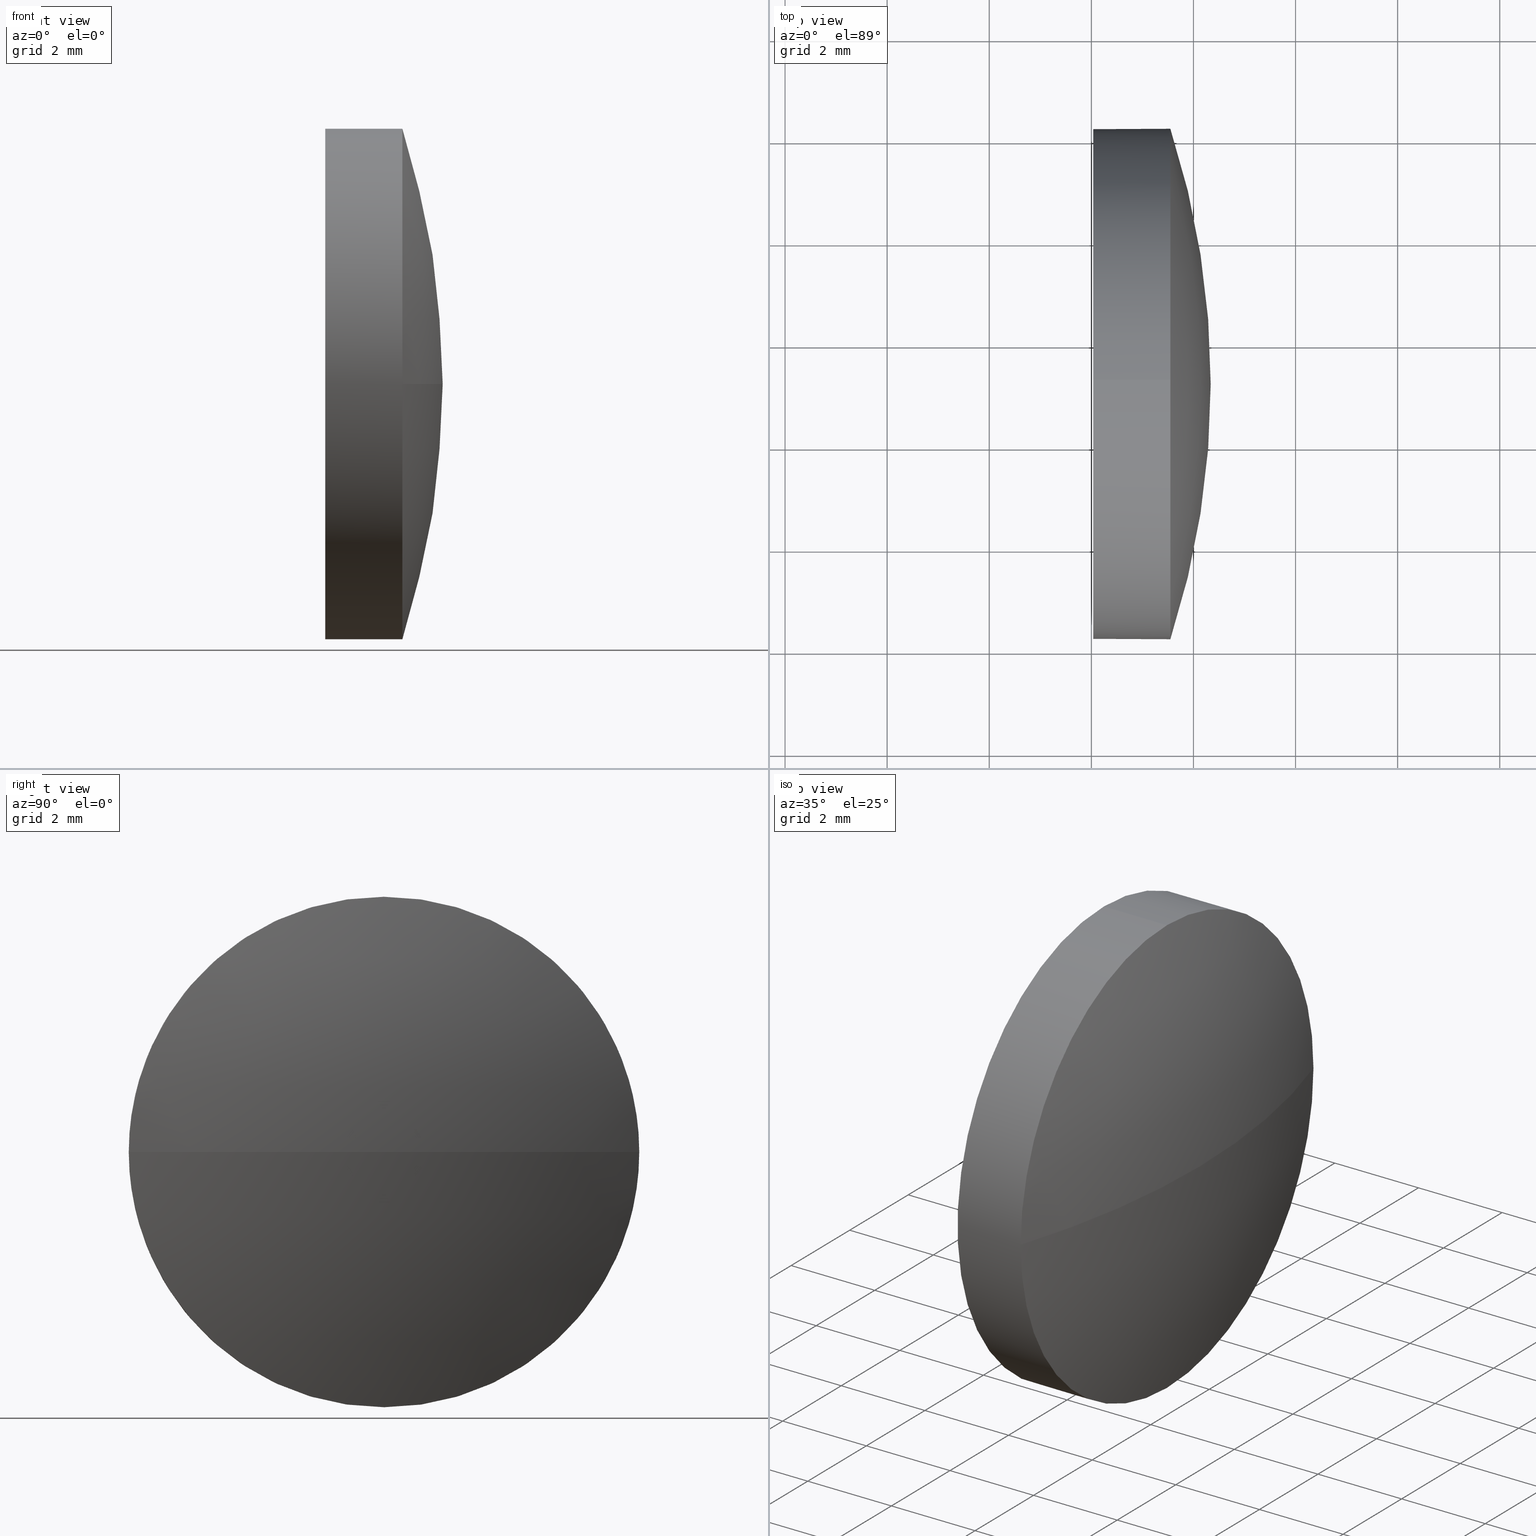
[diagram: canonical four-view strip — front | top / right | iso, engineering-drawing reading convention]
A machine part, canonical four-view strip (front | top / right | iso — engineering-drawing reading convention). The complete STEP part file that produces these views, byte-faithful:
ISO-10303-21;
HEADER;
FILE_DESCRIPTION (( 'STEP AP214' ),
    '1' );
FILE_NAME ('100190.STEP',
    '2019-05-21T06:18:10',
    ( '' ),
    ( '' ),
    'SwSTEP 2.0',
    'SolidWorks 2016',
    '' );
FILE_SCHEMA (( 'AUTOMOTIVE_DESIGN' ));
ENDSEC;

DATA;
#1 = AXIS2_PLACEMENT_3D ( 'NONE', #127, #180, #59 ) ;
#2 = LINE ( 'NONE', #169, #105 ) ;
#3 = CARTESIAN_POINT ( 'NONE',  ( 673.5480780452614900, 143.2040928477547100, 0.0000000000000000000 ) ) ;
#4 =( GEOMETRIC_REPRESENTATION_CONTEXT ( 3 ) GLOBAL_UNCERTAINTY_ASSIGNED_CONTEXT ( ( #103 ) ) GLOBAL_UNIT_ASSIGNED_CONTEXT ( ( #133, #171, #73 ) ) REPRESENTATION_CONTEXT ( 'NONE', 'WORKASPACE' ) );
#5 = EDGE_CURVE ( 'NONE', #115, #97, #75, .T. ) ;
#6 = VERTEX_POINT ( 'NONE', #43 ) ;
#7 =( LENGTH_UNIT ( ) NAMED_UNIT ( * ) SI_UNIT ( .MILLI., .METRE. ) );
#8 =( NAMED_UNIT ( * ) PLANE_ANGLE_UNIT ( ) SI_UNIT ( $, .RADIAN. ) );
#9 = CARTESIAN_POINT ( 'NONE',  ( 673.5480780452614900, 138.2040928477546800, -6.123233995736711100E-016 ) ) ;
#10 = AXIS2_PLACEMENT_3D ( 'NONE', #49, #144, #56 ) ;
#11 = EDGE_LOOP ( 'NONE', ( #177, #136, #35, #143 ) ) ;
#12 = UNCERTAINTY_MEASURE_WITH_UNIT (LENGTH_MEASURE( 1.000000000000000100E-005 ), #7, 'distance_accuracy_value', 'NONE');
#13 = STYLED_ITEM ( 'NONE', ( #156 ), #165 ) ;
#14 = ORIENTED_EDGE ( 'NONE', *, *, #145, .F. ) ;
#15 = FACE_OUTER_BOUND ( 'NONE', #71, .T. ) ;
#16 = CARTESIAN_POINT ( 'NONE',  ( 671.2404057911960500, 143.2040928477547100, 0.0000000000000000000 ) ) ;
#17 = PRESENTATION_LAYER_ASSIGNMENT (  '', '', ( #13 ) ) ;
#18 = CARTESIAN_POINT ( 'NONE',  ( 658.1202932351349100, 143.2040928477546200, 0.0000000000000000000 ) ) ;
#19 = CARTESIAN_POINT ( 'NONE',  ( 672.0380780452615000, 143.2040928477547100, 0.0000000000000000000 ) ) ;
#20 = DIRECTION ( 'NONE',  ( -0.0000000000000000000, 0.0000000000000000000, 1.000000000000000000 ) ) ;
#21 = ORIENTED_EDGE ( 'NONE', *, *, #119, .T. ) ;
#22 = CARTESIAN_POINT ( 'NONE',  ( 658.1202932351349100, 143.2040928477546200, 0.0000000000000000000 ) ) ;
#23 = FILL_AREA_STYLE_COLOUR ( '', #139 ) ;
#24 = ORIENTED_EDGE ( 'NONE', *, *, #54, .F. ) ;
#25 = MECHANICAL_DESIGN_GEOMETRIC_PRESENTATION_REPRESENTATION (  '', ( #13 ), #4 ) ;
#26 = ADVANCED_FACE ( 'NONE', ( #155 ), #28, .F. ) ;
#27 = ADVANCED_FACE ( 'NONE', ( #150 ), #68, .T. ) ;
#28 = PLANE ( 'NONE',  #110 ) ;
#29 = CARTESIAN_POINT ( 'NONE',  ( 672.0380780452615000, 143.2040928477547100, -5.000000000000004400 ) ) ;
#30 = CARTESIAN_POINT ( 'NONE',  ( 672.0380780452615000, 143.2040928477547100, 0.0000000000000000000 ) ) ;
#31 = CARTESIAN_POINT ( 'NONE',  ( 673.5480780452614900, 143.2040928477547100, 5.000000000000004400 ) ) ;
#32 = SURFACE_STYLE_FILL_AREA ( #154 ) ;
#33 = DIRECTION ( 'NONE',  ( 0.0000000000000000000, 0.0000000000000000000, 1.000000000000000000 ) ) ;
#34 = ORIENTED_EDGE ( 'NONE', *, *, #84, .F. ) ;
#35 = ORIENTED_EDGE ( 'NONE', *, *, #77, .F. ) ;
#36 = UNCERTAINTY_MEASURE_WITH_UNIT (LENGTH_MEASURE( 1.000000000000000100E-005 ), #48, 'distance_accuracy_value', 'NONE');
#37 = EDGE_CURVE ( 'NONE', #97, #168, #38, .T. ) ;
#38 = CIRCLE ( 'NONE', #123, 5.000000000000004400 ) ;
#39 = ADVANCED_FACE ( 'NONE', ( #53 ), #78, .T. ) ;
#40 = DIRECTION ( 'NONE',  ( -1.000000000000000000, -0.0000000000000000000, -0.0000000000000000000 ) ) ;
#41 = CYLINDRICAL_SURFACE ( 'NONE', #176, 5.000000000000004400 ) ;
#42 = CARTESIAN_POINT ( 'NONE',  ( 673.5480780452614900, 148.2040928477546500, 0.0000000000000000000 ) ) ;
#43 = CARTESIAN_POINT ( 'NONE',  ( 673.5480780452614900, 143.2040928477547100, -5.000000000000004400 ) ) ;
#44 = MANIFOLD_SOLID_BREP ( '��ת2', #104 ) ;
#45 = ORIENTED_EDGE ( 'NONE', *, *, #77, .T. ) ;
#46 = DIRECTION ( 'NONE',  ( 0.0000000000000000000, 0.0000000000000000000, 1.000000000000000000 ) ) ;
#47 = PRODUCT ( '100190', '100190', '', ( #132 ) ) ;
#48 =( LENGTH_UNIT ( ) NAMED_UNIT ( * ) SI_UNIT ( .MILLI., .METRE. ) );
#49 = CARTESIAN_POINT ( 'NONE',  ( 658.1202932351349100, 143.2040928477546200, 0.0000000000000000000 ) ) ;
#50 = ORIENTED_EDGE ( 'NONE', *, *, #108, .F. ) ;
#51 = DIRECTION ( 'NONE',  ( -1.000000000000000000, -0.0000000000000000000, -0.0000000000000000000 ) ) ;
#52 = ORIENTED_EDGE ( 'NONE', *, *, #37, .T. ) ;
#53 = FACE_OUTER_BOUND ( 'NONE', #134, .T. ) ;
#54 = EDGE_CURVE ( 'NONE', #168, #184, #2, .T. ) ;
#55 = DIRECTION ( 'NONE',  ( -0.0000000000000000000, 0.0000000000000000000, -1.000000000000000000 ) ) ;
#56 = DIRECTION ( 'NONE',  ( 0.0000000000000000000, 1.000000000000000000, 0.0000000000000000000 ) ) ;
#57 = SURFACE_SIDE_STYLE ('',( #92 ) ) ;
#58 = SHAPE_DEFINITION_REPRESENTATION ( #113, #165 ) ;
#59 = DIRECTION ( 'NONE',  ( 0.0000000000000000000, 0.0000000000000000000, 1.000000000000000000 ) ) ;
#60 = CARTESIAN_POINT ( 'NONE',  ( 671.2404057911960500, 143.2040928477547100, -5.000000000000004400 ) ) ;
#61 = DIRECTION ( 'NONE',  ( 1.000000000000000000, 0.0000000000000000000, 0.0000000000000000000 ) ) ;
#62 = CIRCLE ( 'NONE', #158, 5.000000000000004400 ) ;
#63 = COLOUR_RGB ( '',1.000000000000000000, 1.000000000000000000, 1.000000000000000000 ) ;
#64 = DIRECTION ( 'NONE',  ( 0.0000000000000000000, 0.0000000000000000000, 1.000000000000000000 ) ) ;
#65 = ORIENTED_EDGE ( 'NONE', *, *, #37, .F. ) ;
#66 = FILL_AREA_STYLE ('',( #166 ) ) ;
#67 = SURFACE_STYLE_USAGE ( .BOTH. , #57 ) ;
#68 = SPHERICAL_SURFACE ( 'NONE', #135, 16.21778481012662400 ) ;
#69 = AXIS2_PLACEMENT_3D ( 'NONE', #181, #33, #61 ) ;
#70 = DIRECTION ( 'NONE',  ( 1.000000000000000000, 0.0000000000000000000, 0.0000000000000000000 ) ) ;
#71 = EDGE_LOOP ( 'NONE', ( #159, #161, #14, #24, #99 ) ) ;
#72 = CARTESIAN_POINT ( 'NONE',  ( 674.3380780452614500, 143.2040928477546200, 0.0000000000000000000 ) ) ;
#73 =( NAMED_UNIT ( * ) SI_UNIT ( $, .STERADIAN. ) SOLID_ANGLE_UNIT ( ) );
#74 = APPLICATION_CONTEXT ( 'automotive_design' ) ;
#75 = CIRCLE ( 'NONE', #80, 16.21778481012661600 ) ;
#76 = APPLICATION_PROTOCOL_DEFINITION ( 'draft international standard', 'automotive_design', 1998, #74 ) ;
#77 = EDGE_CURVE ( 'NONE', #6, #97, #185, .T. ) ;
#78 = CYLINDRICAL_SURFACE ( 'NONE', #148, 5.000000000000004400 ) ;
#79 = LINE ( 'NONE', #60, #107 ) ;
#80 = AXIS2_PLACEMENT_3D ( 'NONE', #179, #95, #114 ) ;
#81 = DIRECTION ( 'NONE',  ( 1.000000000000000000, 0.0000000000000000000, 0.0000000000000000000 ) ) ;
#82 = DIRECTION ( 'NONE',  ( -1.000000000000000000, -0.0000000000000000000, -0.0000000000000000000 ) ) ;
#83 = DIRECTION ( 'NONE',  ( 0.0000000000000000000, 0.0000000000000000000, 1.000000000000000000 ) ) ;
#84 = EDGE_CURVE ( 'NONE', #168, #86, #122, .T. ) ;
#85 =( NAMED_UNIT ( * ) SI_UNIT ( $, .STERADIAN. ) SOLID_ANGLE_UNIT ( ) );
#86 = VERTEX_POINT ( 'NONE', #42 ) ;
#87 = DIRECTION ( 'NONE',  ( -1.000000000000000000, -0.0000000000000000000, -0.0000000000000000000 ) ) ;
#88 = DIRECTION ( 'NONE',  ( -1.000000000000000000, -0.0000000000000000000, -0.0000000000000000000 ) ) ;
#89 = APPLICATION_PROTOCOL_DEFINITION ( 'draft international standard', 'automotive_design', 1998, #173 ) ;
#90 = ORIENTED_EDGE ( 'NONE', *, *, #54, .T. ) ;
#91 = CIRCLE ( 'NONE', #131, 5.000000000000004400 ) ;
#92 = SURFACE_STYLE_FILL_AREA ( #66 ) ;
#93 = EDGE_CURVE ( 'NONE', #6, #117, #79, .T. ) ;
#94 = CIRCLE ( 'NONE', #141, 16.21778481012658800 ) ;
#95 = DIRECTION ( 'NONE',  ( 0.0000000000000000000, 1.224646799147353200E-016, -1.000000000000000000 ) ) ;
#96 = CARTESIAN_POINT ( 'NONE',  ( 672.0380780452615000, 143.2040928477547100, 0.0000000000000000000 ) ) ;
#97 = VERTEX_POINT ( 'NONE', #9 ) ;
#98 = EDGE_CURVE ( 'NONE', #86, #6, #91, .T. ) ;
#99 = ORIENTED_EDGE ( 'NONE', *, *, #84, .T. ) ;
#100 = CARTESIAN_POINT ( 'NONE',  ( 673.5480780452614900, 143.2040928477547100, 0.0000000000000000000 ) ) ;
#101 = CARTESIAN_POINT ( 'NONE',  ( 673.5480780452614900, 143.2040928477547100, 0.0000000000000000000 ) ) ;
#102 = CARTESIAN_POINT ( 'NONE',  ( 671.2404057911960500, 143.2040928477547100, 0.0000000000000000000 ) ) ;
#103 = UNCERTAINTY_MEASURE_WITH_UNIT (LENGTH_MEASURE( 1.000000000000000100E-005 ), #133, 'distance_accuracy_value', 'NONE');
#104 = CLOSED_SHELL ( 'NONE', ( #111, #27, #160, #39, #26 ) ) ;
#105 = VECTOR ( 'NONE', #118, 1000.000000000000000 ) ;
#106 = EDGE_LOOP ( 'NONE', ( #140, #21, #34, #65 ) ) ;
#107 = VECTOR ( 'NONE', #121, 1000.000000000000000 ) ;
#108 = EDGE_CURVE ( 'NONE', #117, #184, #163, .T. ) ;
#109 = EDGE_LOOP ( 'NONE', ( #157, #112 ) ) ;
#110 = AXIS2_PLACEMENT_3D ( 'NONE', #96, #81, #164 ) ;
#111 = ADVANCED_FACE ( 'NONE', ( #15 ), #41, .T. ) ;
#112 = ORIENTED_EDGE ( 'NONE', *, *, #108, .T. ) ;
#113 = PRODUCT_DEFINITION_SHAPE ( 'NONE', 'NONE',  #152 ) ;
#114 = DIRECTION ( 'NONE',  ( 0.0000000000000000000, 1.000000000000000000, 1.224646799147353700E-016 ) ) ;
#115 = VERTEX_POINT ( 'NONE', #72 ) ;
#116 = DIRECTION ( 'NONE',  ( 0.0000000000000000000, 0.0000000000000000000, 1.000000000000000000 ) ) ;
#117 = VERTEX_POINT ( 'NONE', #29 ) ;
#118 = DIRECTION ( 'NONE',  ( -1.000000000000000000, -0.0000000000000000000, -0.0000000000000000000 ) ) ;
#119 = EDGE_CURVE ( 'NONE', #115, #86, #94, .T. ) ;
#120 = CARTESIAN_POINT ( 'NONE',  ( 672.0380780452615000, 143.2040928477547100, 5.000000000000004400 ) ) ;
#121 = DIRECTION ( 'NONE',  ( -1.000000000000000000, -0.0000000000000000000, -0.0000000000000000000 ) ) ;
#122 = CIRCLE ( 'NONE', #1, 5.000000000000004400 ) ;
#123 = AXIS2_PLACEMENT_3D ( 'NONE', #3, #82, #116 ) ;
#124 = AXIS2_PLACEMENT_3D ( 'NONE', #100, #87, #130 ) ;
#125 = PRODUCT_RELATED_PRODUCT_CATEGORY ( 'part', '', ( #47 ) ) ;
#126 = PRODUCT_DEFINITION_CONTEXT ( 'detailed design', #74, 'design' ) ;
#127 = CARTESIAN_POINT ( 'NONE',  ( 673.5480780452614900, 143.2040928477547100, 0.0000000000000000000 ) ) ;
#128 = ORIENTED_EDGE ( 'NONE', *, *, #93, .F. ) ;
#129 = DIRECTION ( 'NONE',  ( -1.000000000000000000, -0.0000000000000000000, -0.0000000000000000000 ) ) ;
#130 = DIRECTION ( 'NONE',  ( 0.0000000000000000000, 0.0000000000000000000, 1.000000000000000000 ) ) ;
#131 = AXIS2_PLACEMENT_3D ( 'NONE', #101, #149, #170 ) ;
#132 = PRODUCT_CONTEXT ( 'NONE', #173, 'mechanical' ) ;
#133 =( LENGTH_UNIT ( ) NAMED_UNIT ( * ) SI_UNIT ( .MILLI., .METRE. ) );
#134 = EDGE_LOOP ( 'NONE', ( #128, #45, #52, #90, #50 ) ) ;
#135 = AXIS2_PLACEMENT_3D ( 'NONE', #18, #55, #167 ) ;
#136 = ORIENTED_EDGE ( 'NONE', *, *, #5, .T. ) ;
#137 = FACE_OUTER_BOUND ( 'NONE', #106, .T. ) ;
#138 = AXIS2_PLACEMENT_3D ( 'NONE', #30, #51, #147 ) ;
#139 = COLOUR_RGB ( '',1.000000000000000000, 1.000000000000000000, 1.000000000000000000 ) ;
#140 = ORIENTED_EDGE ( 'NONE', *, *, #5, .F. ) ;
#141 = AXIS2_PLACEMENT_3D ( 'NONE', #22, #20, #70 ) ;
#142 = PRODUCT_DEFINITION_FORMATION_WITH_SPECIFIED_SOURCE ( '�κ�', '', #47, .NOT_KNOWN. ) ;
#143 = ORIENTED_EDGE ( 'NONE', *, *, #98, .F. ) ;
#144 = DIRECTION ( 'NONE',  ( -0.0000000000000000000, 0.0000000000000000000, -1.000000000000000000 ) ) ;
#145 = EDGE_CURVE ( 'NONE', #184, #117, #62, .T. ) ;
#146 =( NAMED_UNIT ( * ) SI_UNIT ( $, .STERADIAN. ) SOLID_ANGLE_UNIT ( ) );
#147 = DIRECTION ( 'NONE',  ( 0.0000000000000000000, 0.0000000000000000000, 1.000000000000000000 ) ) ;
#148 = AXIS2_PLACEMENT_3D ( 'NONE', #16, #40, #64 ) ;
#149 = DIRECTION ( 'NONE',  ( -1.000000000000000000, -0.0000000000000000000, -0.0000000000000000000 ) ) ;
#150 = FACE_OUTER_BOUND ( 'NONE', #11, .T. ) ;
#151 = SPHERICAL_SURFACE ( 'NONE', #10, 16.21778481012662400 ) ;
#152 = PRODUCT_DEFINITION ( 'δ֪', '', #142, #126 ) ;
#153 = SURFACE_SIDE_STYLE ('',( #32 ) ) ;
#154 = FILL_AREA_STYLE ('',( #23 ) ) ;
#155 = FACE_OUTER_BOUND ( 'NONE', #109, .T. ) ;
#156 = PRESENTATION_STYLE_ASSIGNMENT (( #174 ) ) ;
#157 = ORIENTED_EDGE ( 'NONE', *, *, #145, .T. ) ;
#158 = AXIS2_PLACEMENT_3D ( 'NONE', #19, #88, #46 ) ;
#159 = ORIENTED_EDGE ( 'NONE', *, *, #98, .T. ) ;
#160 = ADVANCED_FACE ( 'NONE', ( #137 ), #151, .T. ) ;
#161 = ORIENTED_EDGE ( 'NONE', *, *, #93, .T. ) ;
#162 = PRESENTATION_LAYER_ASSIGNMENT (  '', '', ( #172 ) ) ;
#163 = CIRCLE ( 'NONE', #138, 5.000000000000004400 ) ;
#164 = DIRECTION ( 'NONE',  ( 0.0000000000000000000, 0.0000000000000000000, -1.000000000000000000 ) ) ;
#165 = ADVANCED_BREP_SHAPE_REPRESENTATION ( '100190', ( #44, #69 ), #178 ) ;
#166 = FILL_AREA_STYLE_COLOUR ( '', #63 ) ;
#167 = DIRECTION ( 'NONE',  ( 0.0000000000000000000, 1.000000000000000000, 0.0000000000000000000 ) ) ;
#168 = VERTEX_POINT ( 'NONE', #31 ) ;
#169 = CARTESIAN_POINT ( 'NONE',  ( 671.2404057911960500, 143.2040928477547100, 5.000000000000004400 ) ) ;
#170 = DIRECTION ( 'NONE',  ( 0.0000000000000000000, 0.0000000000000000000, 1.000000000000000000 ) ) ;
#171 =( NAMED_UNIT ( * ) PLANE_ANGLE_UNIT ( ) SI_UNIT ( $, .RADIAN. ) );
#172 = STYLED_ITEM ( 'NONE', ( #175 ), #44 ) ;
#173 = APPLICATION_CONTEXT ( 'automotive_design' ) ;
#174 = SURFACE_STYLE_USAGE ( .BOTH. , #153 ) ;
#175 = PRESENTATION_STYLE_ASSIGNMENT (( #67 ) ) ;
#176 = AXIS2_PLACEMENT_3D ( 'NONE', #102, #129, #83 ) ;
#177 = ORIENTED_EDGE ( 'NONE', *, *, #119, .F. ) ;
#178 =( GEOMETRIC_REPRESENTATION_CONTEXT ( 3 ) GLOBAL_UNCERTAINTY_ASSIGNED_CONTEXT ( ( #36 ) ) GLOBAL_UNIT_ASSIGNED_CONTEXT ( ( #48, #182, #146 ) ) REPRESENTATION_CONTEXT ( 'NONE', 'WORKASPACE' ) );
#179 = CARTESIAN_POINT ( 'NONE',  ( 658.1202932351349100, 143.2040928477546200, 0.0000000000000000000 ) ) ;
#180 = DIRECTION ( 'NONE',  ( -1.000000000000000000, -0.0000000000000000000, -0.0000000000000000000 ) ) ;
#181 = CARTESIAN_POINT ( 'NONE',  ( 0.0000000000000000000, 0.0000000000000000000, 0.0000000000000000000 ) ) ;
#182 =( NAMED_UNIT ( * ) PLANE_ANGLE_UNIT ( ) SI_UNIT ( $, .RADIAN. ) );
#183 = MECHANICAL_DESIGN_GEOMETRIC_PRESENTATION_REPRESENTATION (  '', ( #172 ), #186 ) ;
#184 = VERTEX_POINT ( 'NONE', #120 ) ;
#185 = CIRCLE ( 'NONE', #124, 5.000000000000004400 ) ;
#186 =( GEOMETRIC_REPRESENTATION_CONTEXT ( 3 ) GLOBAL_UNCERTAINTY_ASSIGNED_CONTEXT ( ( #12 ) ) GLOBAL_UNIT_ASSIGNED_CONTEXT ( ( #7, #8, #85 ) ) REPRESENTATION_CONTEXT ( 'NONE', 'WORKASPACE' ) );
ENDSEC;
END-ISO-10303-21;
